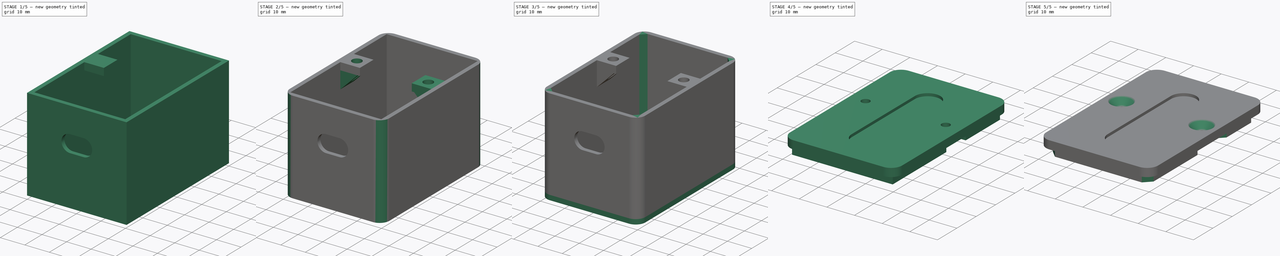
[diagram: build sequence overview — one tinted view per stage of 5, left to right]
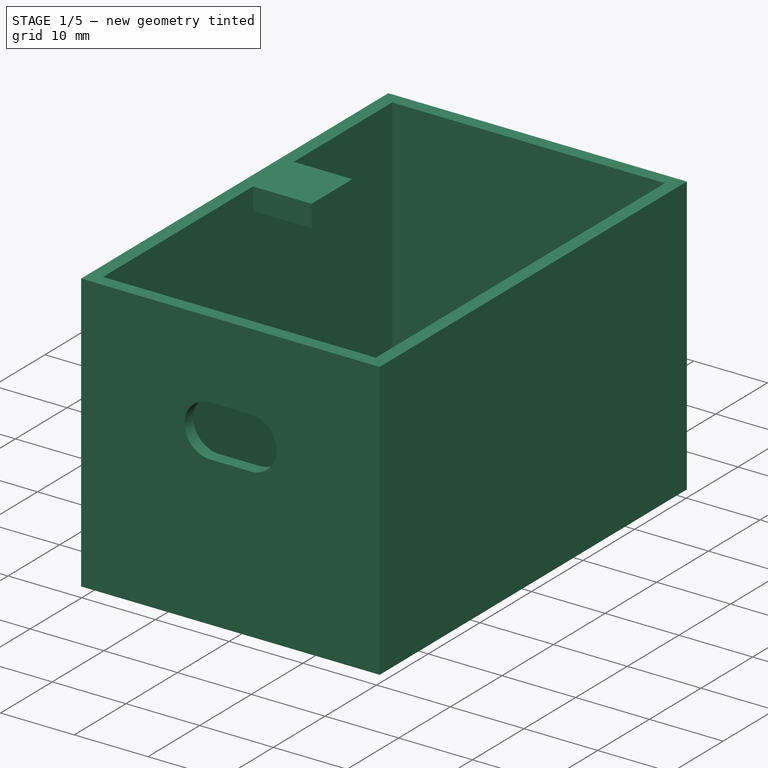
[diagram: stage 1 of 5 — iso view after this stage's code; geometry added in this stage tinted green]
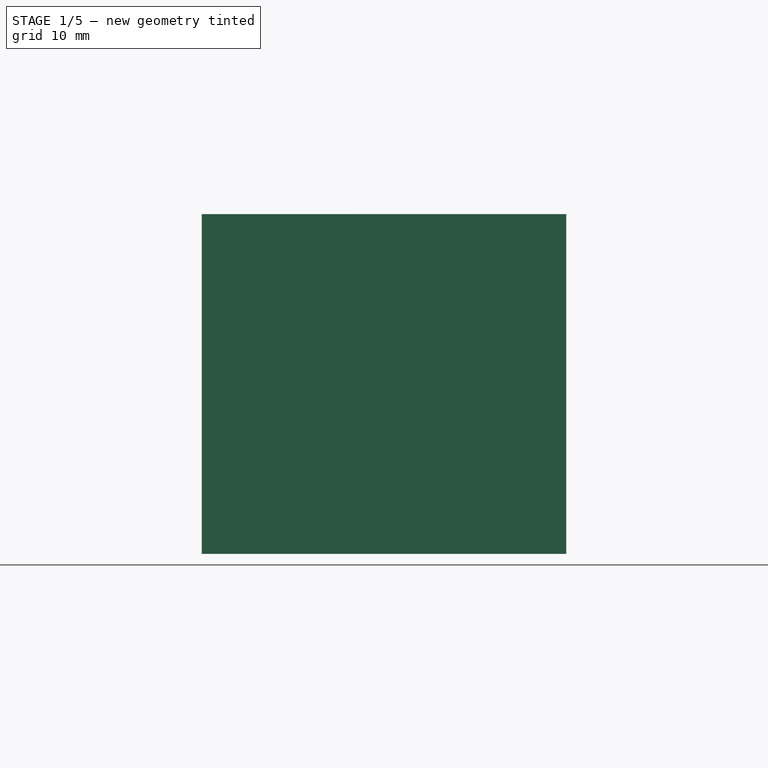
[diagram: stage 1 of 5 — front view after this stage's code; geometry added in this stage tinted green]
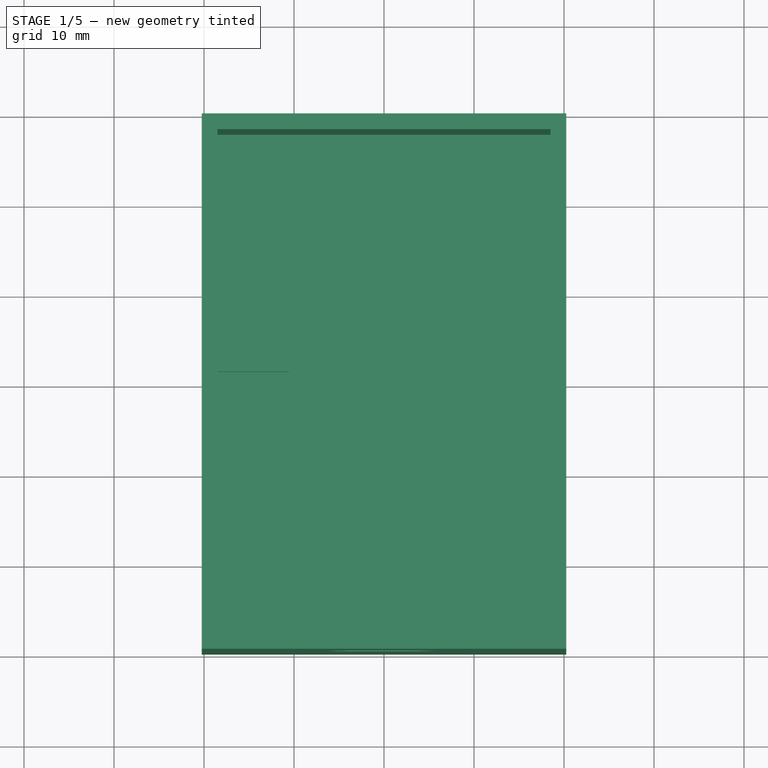
[diagram: stage 1 of 5 — top view after this stage's code; geometry added in this stage tinted green]
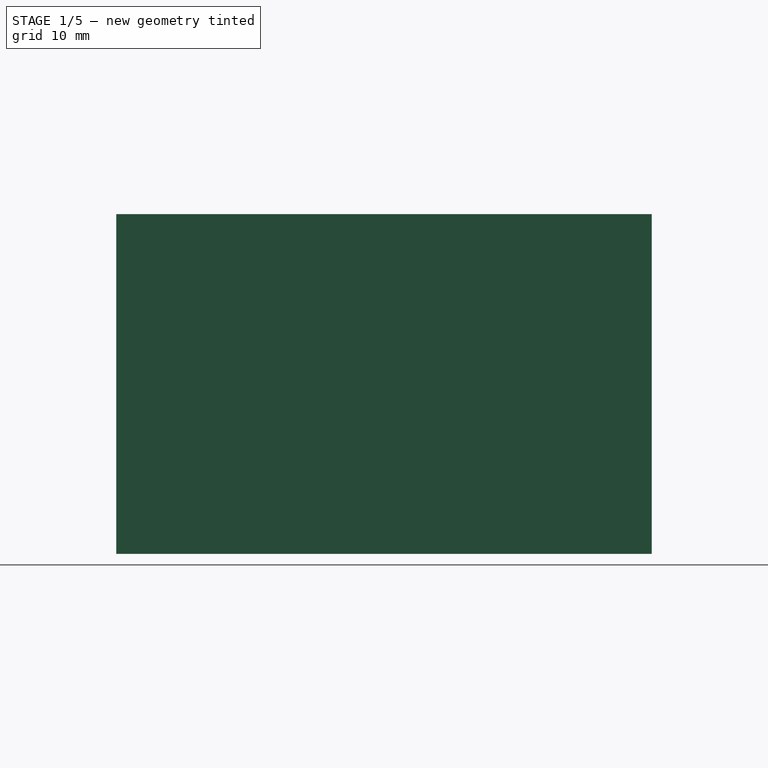
[diagram: stage 1 of 5 — right view after this stage's code; geometry added in this stage tinted green]
FCSTD DOCUMENT  (FreeCAD 0.20R)
Label: controller
License: All rights reserved
LicenseURL: http://en.wikipedia.org/wiki/All_rights_reserved
objects: Sketcher::SketchObject×9, PartDesign::Chamfer×6, PartDesign::Pad×5, PartDesign::Pocket×5, PartDesign::Mirrored×2, PartDesign::Fillet×2, PartDesign::Body×2, PartDesign::Thickness×1, PartDesign::ShapeBinder×1
note: 52 computed .brp shape members not serialized (recipe doc carries the construction recipe); baked Part::Feature solids carry a one-line shape summary decoded from their .brp

FEATURE [Sketcher::SketchObject] Sketch
  FullyConstrained = true
  MapMode = 5
  Support = -> [XY_Plane]
  sketch-geometry (4):
    g0: LineSegment StartX=-18.5 StartY=28 StartZ=0 EndX=18.5 EndY=28 EndZ=0
    g1: LineSegment StartX=18.5 StartY=28 StartZ=0 EndX=18.5 EndY=-28 EndZ=0
    g2: LineSegment StartX=18.5 StartY=-28 StartZ=0 EndX=-18.5 EndY=-28 EndZ=0
    g3: LineSegment StartX=-18.5 StartY=-28 StartZ=0 EndX=-18.5 EndY=28 EndZ=0
  constraints (11):
    c: Coincident(g0,g1)
    c: Coincident(g1,g2)
    c: Coincident(g2,g3)
    c: Coincident(g3,g0)
    c: Horizontal(g0)
    c: Horizontal(g2)
    c: Vertical(g1)
    c: Vertical(g3)
    c: Symmetric(g0,g1,g-1)
    c: DistanceX(g0,g0) = 37
    c: DistanceY(g1,g1) = 56
FEATURE [PartDesign::Pad] Pad
  Direction = (0,0,1)
  Length = 36
  Length2 = 10
  Profile = -> Sketch
  ReferenceAxis = -> Sketch [N_Axis]
  Type = 0
FEATURE [PartDesign::Thickness] Thickness
  Base = -> Pad [Face6]
  BaseFeature = -> Pad
  Intersection = false
  Join = 1
  Mode = 0
  SupportTransform = false
  Value = 1.75
FEATURE [Sketcher::SketchObject] Sketch001
  ExternalGeometry = -> [Thickness]
  FullyConstrained = true
  MapMode = 5
  Placement = pos=(0,-29.75,0) rot=(1,0,0;1.5708rad)
  Support = -> [Thickness]
  sketch-geometry (7):
    g0: ArcOfCircle CenterX=-2.75 CenterY=22 CenterZ=0 NormalX=0 NormalY=0 NormalZ=1 AngleXU=0 Radius=3.5 StartAngle=1.5708 EndAngle=4.71239
    g1: ArcOfCircle CenterX=2.75 CenterY=22 CenterZ=0 NormalX=0 NormalY=0 NormalZ=1 AngleXU=0 Radius=3.5 StartAngle=4.71239 EndAngle=7.85398
    g2: LineSegment StartX=-2.75 StartY=18.5 StartZ=0 EndX=2.75 EndY=18.5 EndZ=0
    g3: LineSegment StartX=2.75 StartY=25.5 StartZ=0 EndX=-2.75 EndY=25.5 EndZ=0
    g4: GeomPoint X=-6.25 Y=22 Z=0
    g5: GeomPoint X=6.25 Y=22 Z=0
    g6: LineSegment StartX=6.25 StartY=22 StartZ=0 EndX=-6.25 EndY=22 EndZ=0
  constraints (15):
    c: Tangent(g0,g2) = -1.5708
    c: Tangent(g2,g1) = -1.5708
    c: Tangent(g1,g3) = -1.5708
    c: Tangent(g3,g0) = -1.5708
    c: Equal(g0,g1)
    c: Diameter(g0) = 7
    c: PointOnObject(g4,g0)
    c: PointOnObject(g5,g1)
    c: Coincident(g6,g5)
    c: Coincident(g6,g4)
    c: PointOnObject(g0,g6)
    c: PointOnObject(g1,g6)
    c: DistanceX(g4,g5) = 12.5
    c: Symmetric(g0,g1,g-2)
    c: DistanceY(g-3,g0) = 22
FEATURE [PartDesign::Pocket] Pocket
  BaseFeature = -> Thickness
  Direction = (0,1,-2e-16)
  Length = 5
  Length2 = 5
  Profile = -> Sketch001
  ReferenceAxis = -> Sketch001 [N_Axis]
  Type = 0
FEATURE [Sketcher::SketchObject] Sketch002
  ExternalGeometry = -> [Pocket]
  FullyConstrained = true
  MapMode = 5
  Placement = pos=(0,0,36) rot=(0,0,1;0rad)
  Support = -> [Pocket]
  sketch-geometry (8):
    g0: Circle CenterX=-14.5 CenterY=5 CenterZ=0 NormalX=0 NormalY=0 NormalZ=1 AngleXU=0 Radius=1.95
    g1: LineSegment StartX=-18.5 StartY=8.95 StartZ=0 EndX=-10.55 EndY=8.95 EndZ=0
    g2: LineSegment StartX=-10.55 StartY=8.95 StartZ=0 EndX=-10.55 EndY=1.05 EndZ=0
    g3: LineSegment StartX=-10.55 StartY=1.05 StartZ=0 EndX=-18.5 EndY=1.05 EndZ=0
    g4: LineSegment StartX=-18.5 StartY=1.05 StartZ=0 EndX=-18.5 EndY=8.95 EndZ=0
    g5: LineSegment StartX=-14.5 StartY=6.95 StartZ=0 EndX=-14.5 EndY=8.95 EndZ=0
    g6: LineSegment StartX=-14.5 StartY=3.05 StartZ=0 EndX=-14.5 EndY=1.05 EndZ=0
    g7: LineSegment StartX=-12.55 StartY=5 StartZ=0 EndX=-10.55 EndY=5 EndZ=0
  constraints (27):
    c: Diameter(g0) = 3.9
    c: DistanceY(g0,g-3) = 23
    c: DistanceX(g-3,g0) = 4
    c: Coincident(g1,g2)
    c: Coincident(g2,g3)
    c: Coincident(g3,g4)
    c: Coincident(g4,g1)
    c: Horizontal(g1)
    c: Horizontal(g3)
    c: Vertical(g2)
    c: Vertical(g4)
    c: PointOnObject(g1,g-3)
    c: PointOnObject(g5,g0)
    c: PointOnObject(g5,g1)
    c: Vertical(g5)
    c: PointOnObject(g6,g0)
    c: PointOnObject(g6,g3)
    c: Vertical(g6)
    c: PointOnObject(g5,g6)
    c: Equal(g5,g6)
    c: PointOnObject(g0,g6)
    c: PointOnObject(g7,g0)
    c: PointOnObject(g7,g2)
    c: Horizontal(g7)
    c: Equal(g7,g6)
    c: PointOnObject(g0,g7)
    c: DistanceX(g7,g7) = 2
FEATURE [PartDesign::Pad] Pad001
  BaseFeature = -> Pocket
  Direction = (0,0,1)
  Length = 3
  Length2 = 10
  Profile = -> Sketch002
  ReferenceAxis = -> Sketch002 [N_Axis]
  Reversed = true
  Type = 0
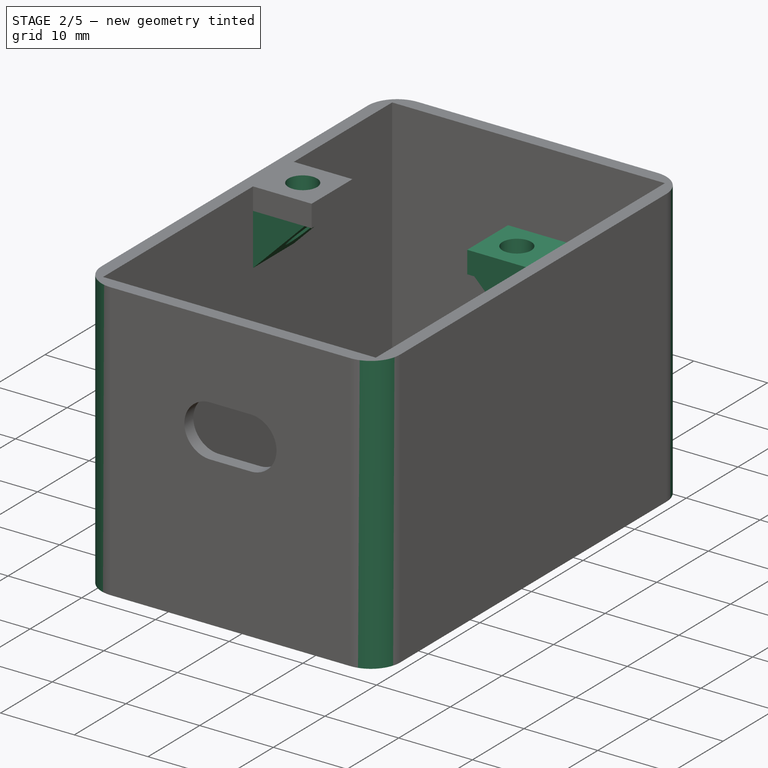
[diagram: stage 2 of 5 — iso view after this stage's code; geometry added in this stage tinted green]
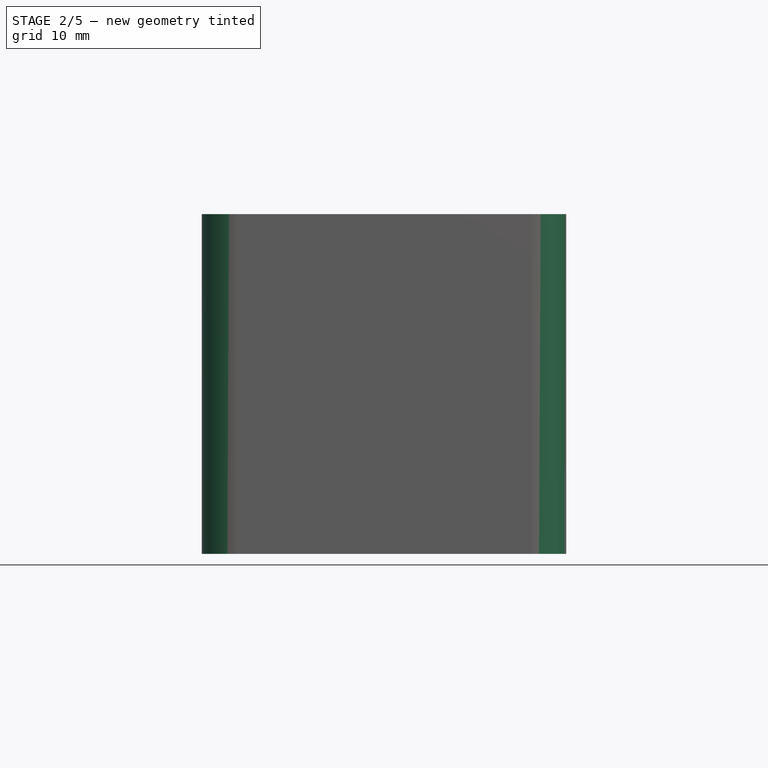
[diagram: stage 2 of 5 — front view after this stage's code; geometry added in this stage tinted green]
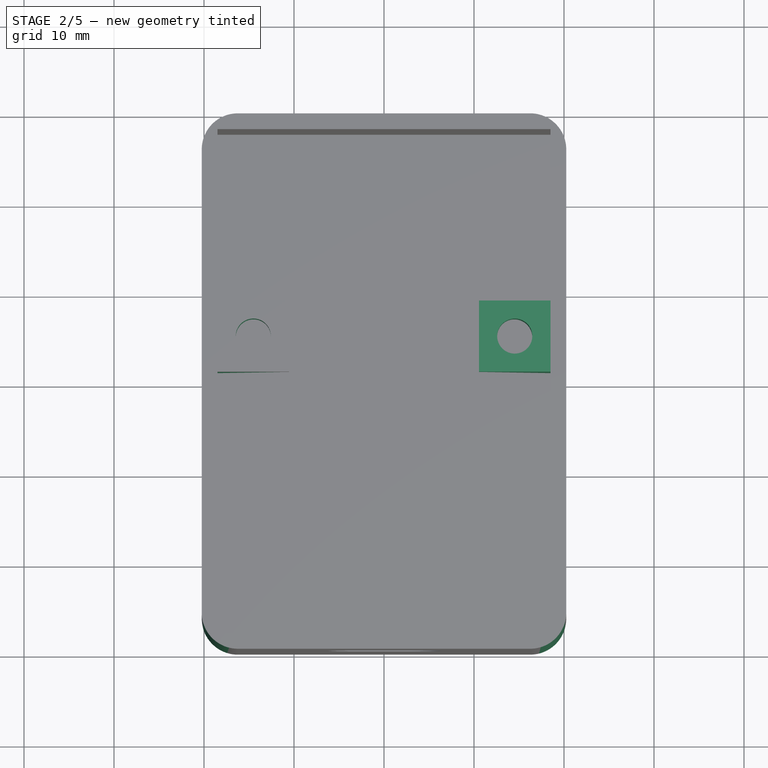
[diagram: stage 2 of 5 — top view after this stage's code; geometry added in this stage tinted green]
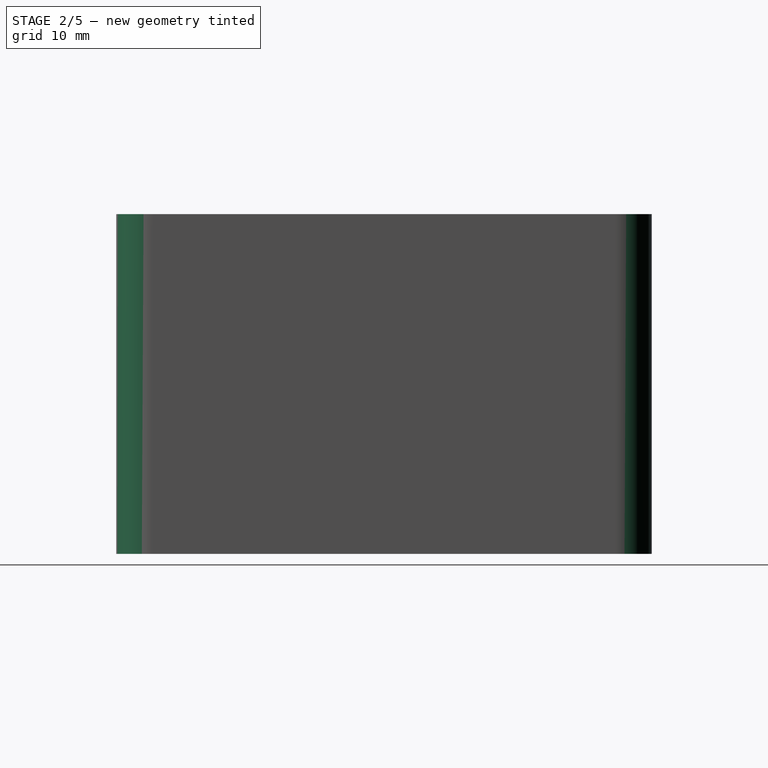
[diagram: stage 2 of 5 — right view after this stage's code; geometry added in this stage tinted green]
FEATURE [PartDesign::Chamfer] Chamfer
  Angle = 45
  Base = -> Pad001 [Edge8]
  BaseFeature = -> Pad001
  ChamferType = 0
  FlipDirection = false
  Size = 7
  Size2 = 1
  SupportTransform = false
  UseAllEdges = false
FEATURE [Sketcher::SketchObject] Sketch003
  ExternalGeometry = -> [Chamfer]
  FullyConstrained = true
  MapMode = 5
  Placement = pos=(0,0,36) rot=(0,0,1;0rad)
  Support = -> [Chamfer]
  sketch-geometry (1):
    g0: Circle CenterX=-14.525 CenterY=5 CenterZ=0 NormalX=0 NormalY=0 NormalZ=1 AngleXU=0 Radius=1.95
  constraints (2):
    c: Diameter(g0) = 3.9
    c: Symmetric(g-4,g-3,g0)
FEATURE [PartDesign::Pocket] Pocket001
  BaseFeature = -> Chamfer
  Direction = (0,0,-1)
  Length = 11
  Length2 = 5
  Profile = -> Sketch003
  ReferenceAxis = -> Sketch003 [N_Axis]
  Type = 0
FEATURE [PartDesign::Mirrored] Mirrored
  BaseFeature = -> Pocket001
  MirrorPlane = -> Sketch002 [V_Axis]
  Originals = -> [Pad001,Chamfer,Pocket001]
FEATURE [PartDesign::Fillet] Fillet
  Base = -> Mirrored [Edge59,Edge57,Edge54,Edge53]
  BaseFeature = -> Mirrored
  Radius = 4
  SupportTransform = false
  UseAllEdges = false
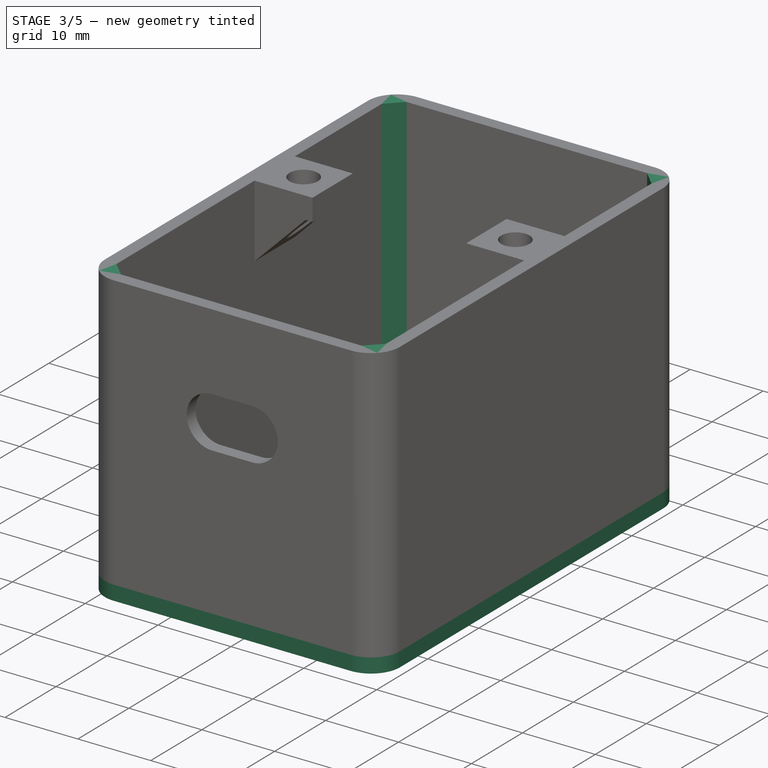
[diagram: stage 3 of 5 — iso view after this stage's code; geometry added in this stage tinted green]
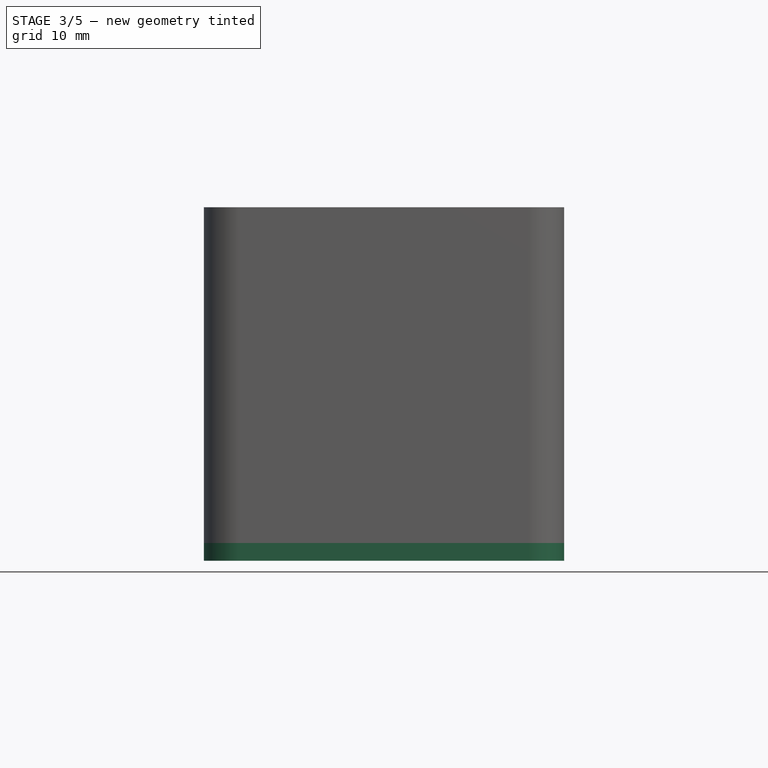
[diagram: stage 3 of 5 — front view after this stage's code; geometry added in this stage tinted green]
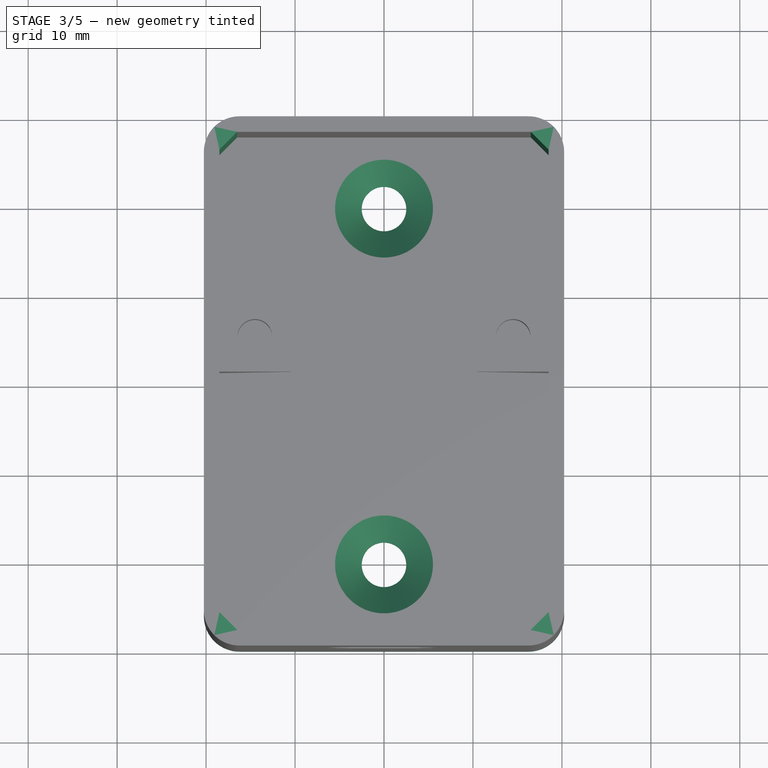
[diagram: stage 3 of 5 — top view after this stage's code; geometry added in this stage tinted green]
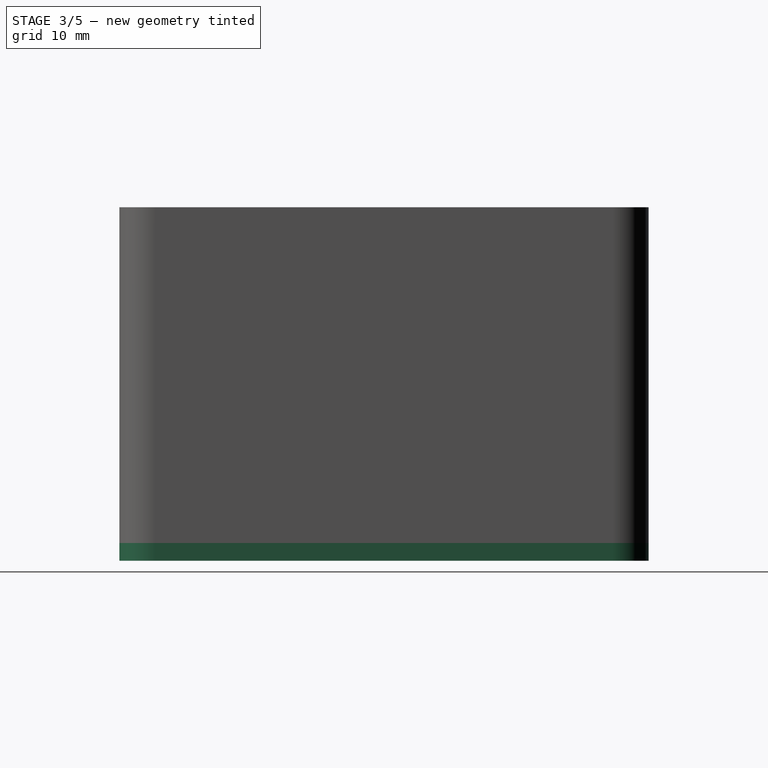
[diagram: stage 3 of 5 — right view after this stage's code; geometry added in this stage tinted green]
FEATURE [PartDesign::Chamfer] Chamfer001
  Angle = 45
  Base = -> Fillet [Edge52,Edge37,Edge38,Edge41]
  BaseFeature = -> Fillet
  ChamferType = 0
  FlipDirection = false
  Size = 2
  Size2 = 1
  SupportTransform = false
  UseAllEdges = false
FEATURE [Sketcher::SketchObject] Sketch004
  FullyConstrained = true
  MapMode = 5
  Support = -> [Chamfer001]
  sketch-geometry (1):
    g0: Circle CenterX=0 CenterY=20 CenterZ=0 NormalX=0 NormalY=0 NormalZ=1 AngleXU=0 Radius=2.5
  constraints (3):
    c: PointOnObject(g0,g-2)
    c: Diameter(g0) = 5
    c: DistanceY(g-1,g0) = 20
FEATURE [PartDesign::Pocket] Pocket002
  BaseFeature = -> Chamfer001
  Direction = (0,0,-1)
  Length = 5
  Length2 = 5
  Profile = -> Sketch004
  ReferenceAxis = -> Sketch004 [N_Axis]
  Type = 1
FEATURE [PartDesign::Mirrored] Mirrored001
  BaseFeature = -> Pocket002
  MirrorPlane = -> XZ_Plane
  Originals = -> [Pocket002]
FEATURE [PartDesign::Pad] Pad002
  BaseFeature = -> Mirrored001
  Direction = (0,0,-1)
  Length = 2
  Length2 = 10
  Profile = -> Mirrored001 [Face37]
  Type = 0
FEATURE [PartDesign::Chamfer] Chamfer002
  Angle = 45
  Base = -> Pad002 [Edge79,Edge80]
  BaseFeature = -> Pad002
  ChamferType = 0
  FlipDirection = false
  Size = 3
  Size2 = 1
  SupportTransform = false
  UseAllEdges = false
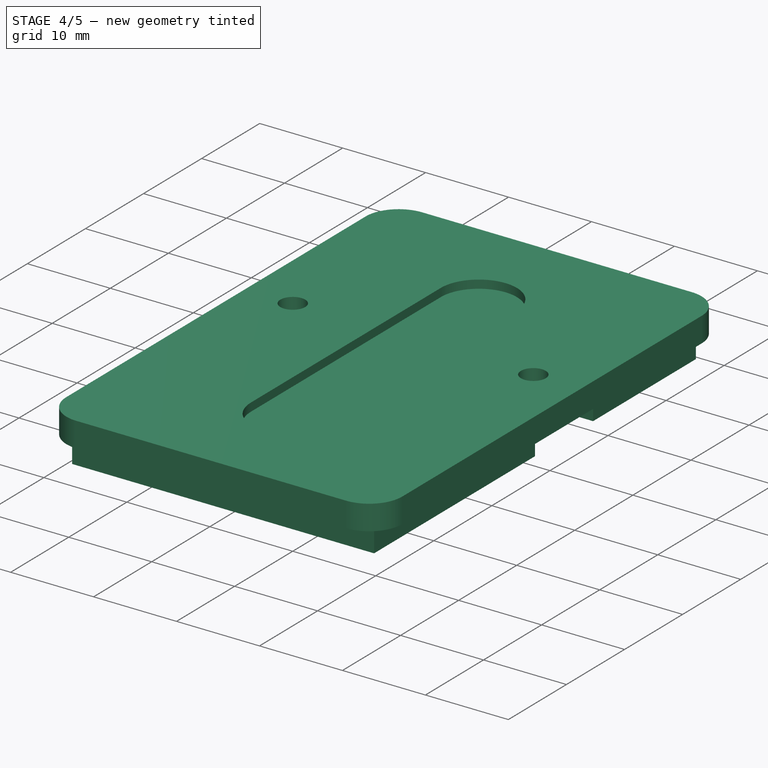
[diagram: stage 4 of 5 — iso view after this stage's code; geometry added in this stage tinted green]
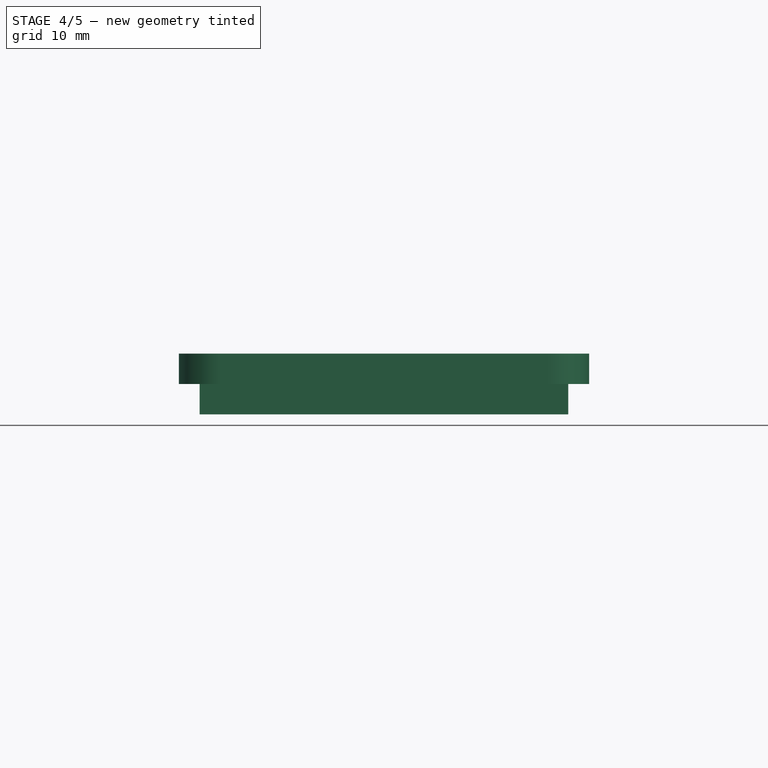
[diagram: stage 4 of 5 — front view after this stage's code; geometry added in this stage tinted green]
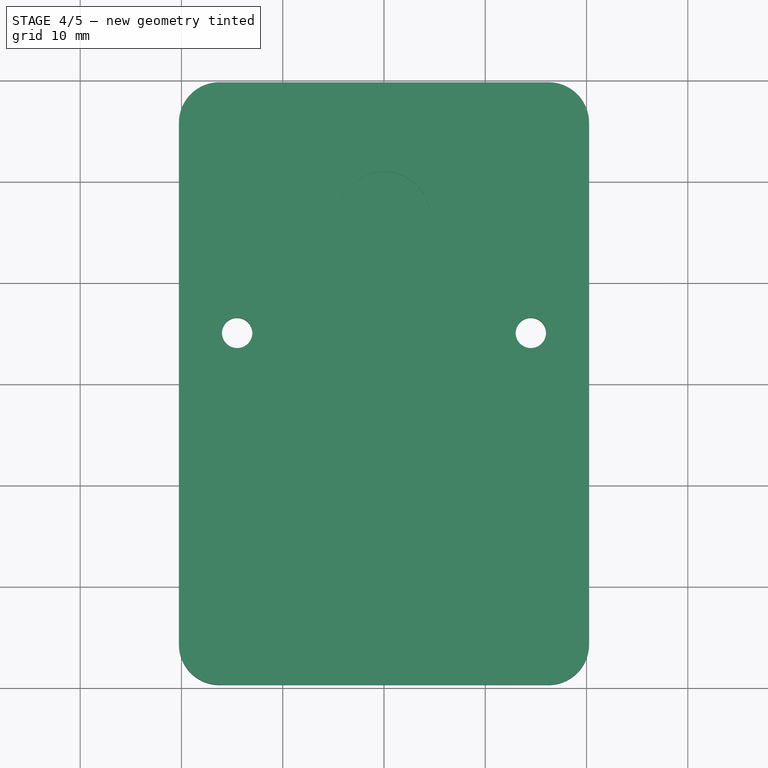
[diagram: stage 4 of 5 — top view after this stage's code; geometry added in this stage tinted green]
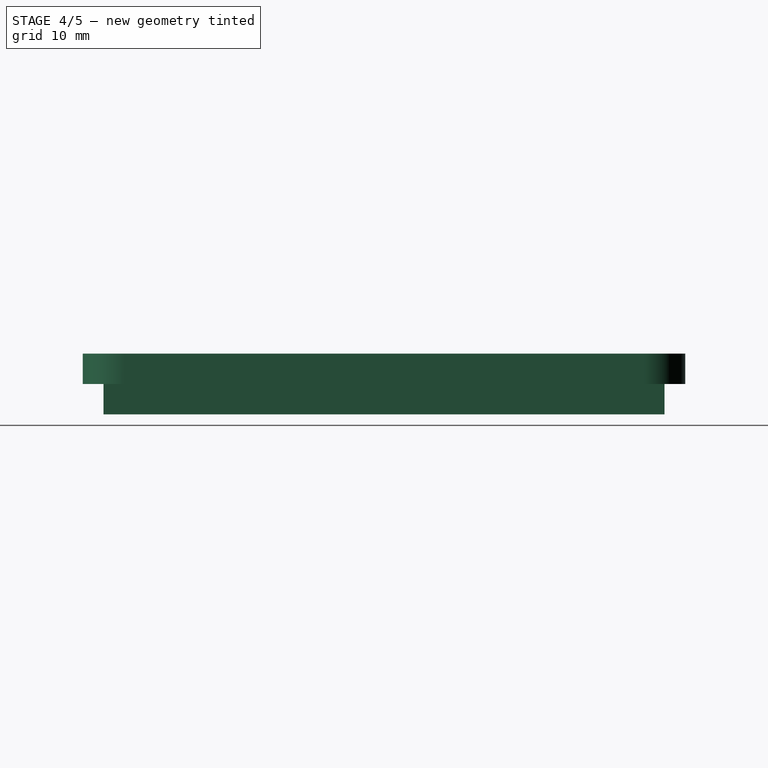
[diagram: stage 4 of 5 — right view after this stage's code; geometry added in this stage tinted green]
FEATURE [PartDesign::Body] Body
  Group = -> [Sketch,Pad,Thickness,Sketch001,Pocket,Sketch002,Pad001,Chamfer,Sketch003,Pocket001,Mirrored,Fillet,Chamfer001,Sketch004,Pocket002,Mirrored001,Pad002,Chamfer002]
  Origin = -> Origin
  Tip = -> Chamfer002
FEATURE [PartDesign::ShapeBinder] CopyChamfer002
  Support = -> [Chamfer002]
  TraceSupport = false
FEATURE [Sketcher::SketchObject] Sketch005
  FullyConstrained = true
  MapMode = 5
  Placement = pos=(0,0,36) rot=(0,0,1;0rad)
  Support = -> [CopyChamfer002]
  sketch-geometry (6):
    g0: Circle CenterX=-14.5 CenterY=5 CenterZ=0 NormalX=0 NormalY=0 NormalZ=1 AngleXU=0 Radius=1.5
    g1: Circle CenterX=14.5 CenterY=5 CenterZ=0 NormalX=0 NormalY=0 NormalZ=1 AngleXU=0 Radius=1.5
    g2: LineSegment StartX=-20.25 StartY=29.75 StartZ=0 EndX=20.25 EndY=29.75 EndZ=0
    g3: LineSegment StartX=20.25 StartY=29.75 StartZ=0 EndX=20.25 EndY=-29.75 EndZ=0
    g4: LineSegment StartX=20.25 StartY=-29.75 StartZ=0 EndX=-20.25 EndY=-29.75 EndZ=0
    g5: LineSegment StartX=-20.25 StartY=-29.75 StartZ=0 EndX=-20.25 EndY=29.75 EndZ=0
  constraints (16):
    c: Equal(g0,g1)
    c: Diameter(g1) = 3
    c: Symmetric(g0,g1,g-2)
    c: DistanceX(g0,g1) = 29
    c: DistanceY(g-1,g0) = 5
    c: Coincident(g2,g3)
    c: Coincident(g3,g4)
    c: Coincident(g4,g5)
    c: Coincident(g5,g2)
    c: Horizontal(g2)
    c: Horizontal(g4)
    c: Vertical(g3)
    c: Vertical(g5)
    c: Symmetric(g3,g2,g-1)
    c: DistanceX(g2,g2) = 40.5
    c: DistanceY(g3,g3) = 59.5
FEATURE [PartDesign::Pad] Pad003
  Direction = (0,0,1)
  Length = 3
  Length2 = 10
  Profile = -> Sketch005
  ReferenceAxis = -> Sketch005 [N_Axis]
  Type = 0
FEATURE [PartDesign::Fillet] Fillet001
  Base = -> Pad003 [Edge5,Edge2,Edge8,Edge1]
  BaseFeature = -> Pad003
  Radius = 4
  SupportTransform = false
  UseAllEdges = false
FEATURE [Sketcher::SketchObject] Sketch006
  ExternalGeometry = -> [Fillet001]
  FullyConstrained = true
  MapMode = 5
  Placement = pos=(0,0,36) rot=(1,0,0;3.14159rad)
  Support = -> [Fillet001]
  sketch-geometry (13):
    g0: LineSegment StartX=-18.2 StartY=0 StartZ=0 EndX=-18.2 EndY=27.7 EndZ=0
    g1: LineSegment StartX=-18.2 StartY=27.7 StartZ=0 EndX=18.2 EndY=27.7 EndZ=0
    g2: LineSegment StartX=18.2 StartY=27.7 StartZ=0 EndX=18.2 EndY=0 EndZ=0
    g3: LineSegment StartX=18.2 StartY=0 StartZ=0 EndX=8.2 EndY=0 EndZ=0
    g4: LineSegment StartX=8.2 StartY=0 StartZ=0 EndX=8.2 EndY=-10 EndZ=0
    g5: LineSegment StartX=8.2 StartY=-10 StartZ=0 EndX=18.2 EndY=-10 EndZ=0
    g6: LineSegment StartX=18.2 StartY=-10 StartZ=0 EndX=18.2 EndY=-27.7 EndZ=0
    g7: LineSegment StartX=18.2 StartY=-27.7 StartZ=0 EndX=-18.2 EndY=-27.7 EndZ=0
    g8: LineSegment StartX=-18.2 StartY=-27.7 StartZ=0 EndX=-18.2 EndY=-10 EndZ=0
    g9: LineSegment StartX=-18.2 StartY=-10 StartZ=0 EndX=-8.2 EndY=-10 EndZ=0
    g10: LineSegment StartX=-8.2 StartY=-10 StartZ=0 EndX=-8.2 EndY=0 EndZ=0
    g11: LineSegment StartX=-8.2 StartY=0 StartZ=0 EndX=-18.2 EndY=0 EndZ=0
    g12: LineSegment StartX=-14.5 StartY=0 StartZ=0 EndX=-14.5 EndY=-10 EndZ=0
  constraints (38):
    c: PointOnObject(g0,g-1)
    c: Vertical(g0)
    c: Coincident(g1,g0)
    c: Horizontal(g1)
    c: Coincident(g2,g1)
    c: PointOnObject(g2,g-1)
    c: Vertical(g2)
    c: Coincident(g3,g2)
    c: PointOnObject(g3,g-1)
    c: Coincident(g4,g3)
    c: Vertical(g4)
    c: Coincident(g5,g4)
    c: Horizontal(g5)
    c: Coincident(g6,g5)
    c: Vertical(g6)
    c: Coincident(g7,g6)
    c: Horizontal(g7)
    c: Coincident(g8,g7)
    c: Vertical(g8)
    c: Coincident(g9,g8)
    c: Coincident(g10,g9)
    c: PointOnObject(g10,g-1)
    c: Vertical(g10)
    c: Coincident(g11,g10)
    c: Coincident(g11,g0)
    c: Horizontal(g9)
    c: PointOnObject(g8,g0)
    c: PointOnObject(g5,g2)
    c: Equal(g3,g11)
    c: DistanceX(g1,g1) = 36.4
    c: Symmetric(g0,g6,g-1)
    c: DistanceY(g6,g1) = 55.4
    c: Equal(g10,g4)
    c: PointOnObject(g12,g11)
    c: PointOnObject(g12,g9)
    c: Vertical(g12)
    c: Symmetric(g12,g12,g-4)
    c: DistanceX(g11,g11) = 10
FEATURE [PartDesign::Pad] Pad004
  BaseFeature = -> Fillet001
  Direction = (0,0,-1)
  Length = 3
  Length2 = 10
  Profile = -> Sketch006
  ReferenceAxis = -> Sketch006 [N_Axis]
  Type = 0
FEATURE [Sketcher::SketchObject] Sketch007
  FullyConstrained = false
  MapMode = 5
  Placement = pos=(0,0,39) rot=(0,0,1;0rad)
  Support = -> [Pad004]
  sketch-geometry (4):
    g0: ArcOfCircle CenterX=0 CenterY=16.3263 CenterZ=0 NormalX=0 NormalY=0 NormalZ=1 AngleXU=0 Radius=4.59284 StartAngle=3e-16 EndAngle=3.14159
    g1: ArcOfCircle CenterX=0 CenterY=-16.3263 CenterZ=0 NormalX=0 NormalY=0 NormalZ=1 AngleXU=0 Radius=4.59284 StartAngle=3.14159 EndAngle=6.28319
    g2: LineSegment StartX=-4.59284 StartY=16.3263 StartZ=0 EndX=-4.59284 EndY=-16.3263 EndZ=0
    g3: LineSegment StartX=4.59284 StartY=-16.3263 StartZ=0 EndX=4.59284 EndY=16.3263 EndZ=0
  constraints (7):
    c: Tangent(g0,g2) = -1.5708
    c: Tangent(g2,g1) = -1.5708
    c: Tangent(g1,g3) = -1.5708
    c: Tangent(g3,g0) = -1.5708
    c: Equal(g0,g1)
    c: PointOnObject(g0,g-2)
    c: Symmetric(g0,g1,g-1)
FEATURE [PartDesign::Pocket] Pocket003
  BaseFeature = -> Pad004
  Direction = (0,0,-1)
  Length = 1
  Length2 = 5
  Profile = -> Sketch007
  ReferenceAxis = -> Sketch007 [N_Axis]
  Type = 0
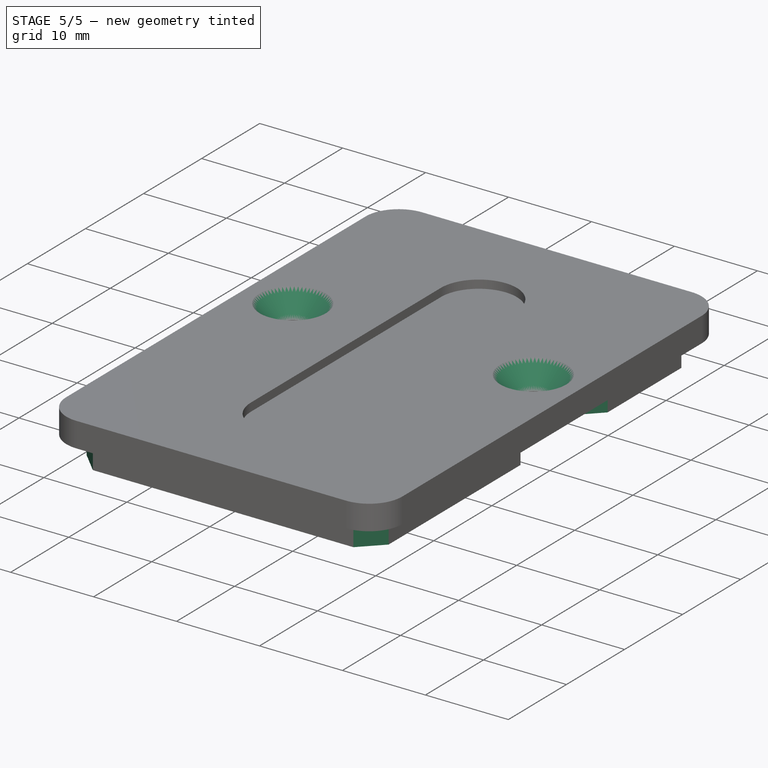
[diagram: stage 5 of 5 — iso view after this stage's code; geometry added in this stage tinted green]
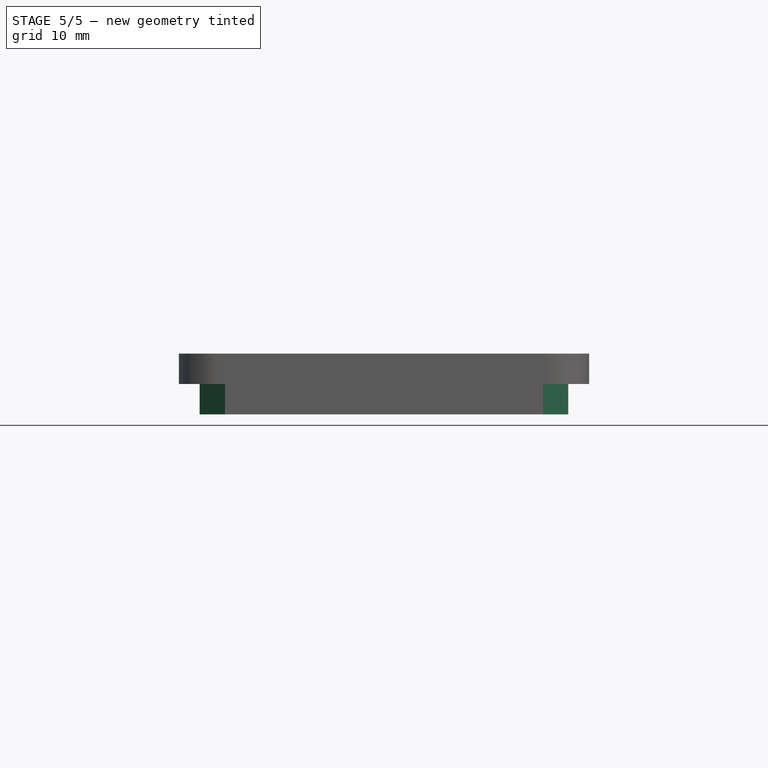
[diagram: stage 5 of 5 — front view after this stage's code; geometry added in this stage tinted green]
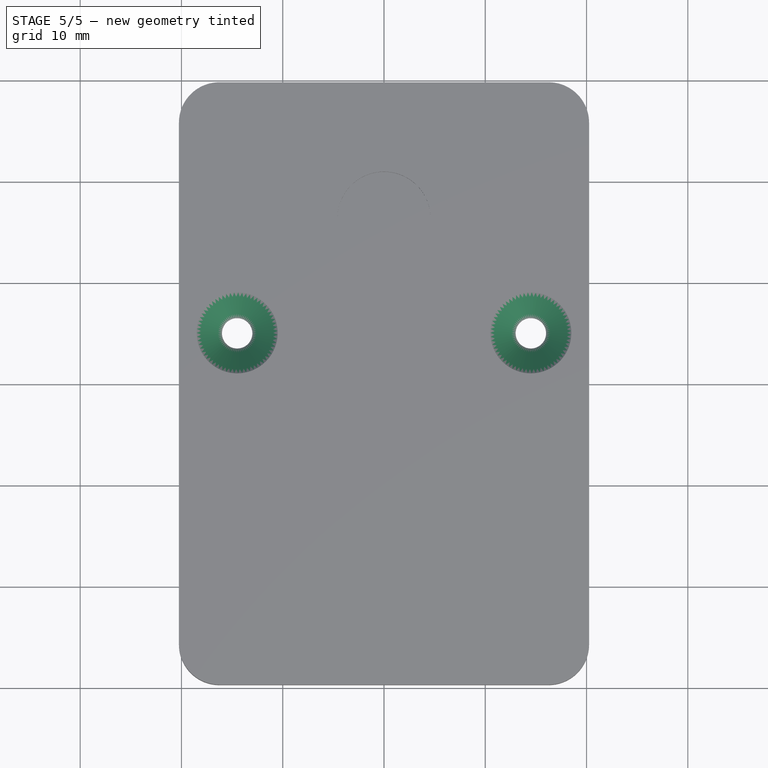
[diagram: stage 5 of 5 — top view after this stage's code; geometry added in this stage tinted green]
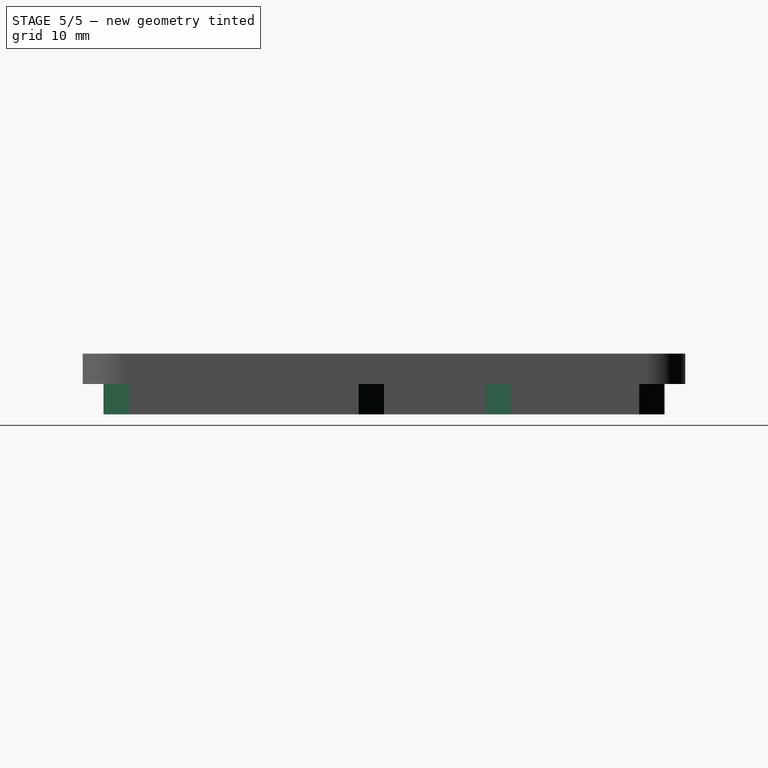
[diagram: stage 5 of 5 — right view after this stage's code; geometry added in this stage tinted green]
FEATURE [PartDesign::Chamfer] Chamfer003
  Angle = 45
  Base = -> Pocket003 [Edge40,Edge35]
  BaseFeature = -> Pocket003
  ChamferType = 0
  FlipDirection = false
  Size = 2.5
  Size2 = 1
  SupportTransform = false
  UseAllEdges = false
FEATURE [PartDesign::Chamfer] Chamfer004
  Angle = 45
  Base = -> Chamfer003 [Edge62,Edge60,Edge74,Edge72]
  BaseFeature = -> Chamfer003
  ChamferType = 0
  FlipDirection = false
  Size = 2.5
  Size2 = 1
  SupportTransform = false
  UseAllEdges = false
FEATURE [Sketcher::SketchObject] Sketch008
  ExternalGeometry = -> [Chamfer004]
  FullyConstrained = true
  MapMode = 5
  Placement = pos=(0,0,33) rot=(1,0,0;3.14159rad)
  Support = -> [Chamfer004]
  sketch-geometry (16):
    g0: LineSegment StartX=-16.2 StartY=2 StartZ=0 EndX=-16.2 EndY=25.7 EndZ=0
    g1: LineSegment StartX=-16.2 StartY=25.7 StartZ=0 EndX=16.2 EndY=25.7 EndZ=0
    g2: LineSegment StartX=16.2 StartY=25.7 StartZ=0 EndX=16.2 EndY=2 EndZ=0
    g3: LineSegment StartX=16.2 StartY=2 StartZ=0 EndX=-16.2 EndY=2 EndZ=0
    g4: LineSegment StartX=16.2 StartY=2 StartZ=0 EndX=18.2 EndY=2 EndZ=0
    g5: LineSegment StartX=-16.2 StartY=2 StartZ=0 EndX=-18.2 EndY=2 EndZ=0
    g6: LineSegment StartX=-16.2 StartY=2 StartZ=0 EndX=-16.2 EndY=0 EndZ=0
    g7: LineSegment StartX=-16.2 StartY=25.7 StartZ=0 EndX=-16.2 EndY=27.7 EndZ=0
    g8: LineSegment StartX=-16.2 StartY=-12 StartZ=0 EndX=16.2 EndY=-12 EndZ=0
    g9: LineSegment StartX=16.2 StartY=-12 StartZ=0 EndX=16.2 EndY=-25.7 EndZ=0
    g10: LineSegment StartX=16.2 StartY=-25.7 StartZ=0 EndX=-16.2 EndY=-25.7 EndZ=0
    g11: LineSegment StartX=-16.2 StartY=-25.7 StartZ=0 EndX=-16.2 EndY=-12 EndZ=0
    g12: LineSegment StartX=16.2 StartY=-12 StartZ=0 EndX=16.2 EndY=-10 EndZ=0
    g13: LineSegment StartX=16.2 StartY=-12 StartZ=0 EndX=18.2 EndY=-12 EndZ=0
    g14: LineSegment StartX=16.2 StartY=-25.7 StartZ=0 EndX=16.2 EndY=-27.7 EndZ=0
    g15: LineSegment StartX=-16.2 StartY=-12 StartZ=0 EndX=-18.2 EndY=-12 EndZ=0
  constraints (48):
    c: Vertical(g0)
    c: Coincident(g1,g0)
    c: Horizontal(g1)
    c: Coincident(g2,g1)
    c: Vertical(g2)
    c: Coincident(g3,g2)
    c: Horizontal(g3)
    c: Coincident(g3,g0)
    c: Coincident(g4,g2)
    c: PointOnObject(g4,g-18)
    c: Horizontal(g4)
    c: Coincident(g5,g0)
    c: PointOnObject(g5,g-6)
    c: Coincident(g6,g0)
    c: PointOnObject(g6,g-7)
    c: Vertical(g6)
    c: Horizontal(g5)
    c: Equal(g4,g5)
    c: Equal(g6,g4)
    c: Coincident(g7,g0)
    c: PointOnObject(g7,g-4)
    c: Vertical(g7)
    c: Equal(g7,g5)
    c: DistanceY(g7,g7) = 2
    c: Coincident(g8,g9)
    c: Coincident(g9,g10)
    c: Coincident(g10,g11)
    c: Coincident(g11,g8)
    c: Horizontal(g8)
    c: Horizontal(g10)
    c: Vertical(g9)
    c: Vertical(g11)
    c: Coincident(g12,g8)
    c: PointOnObject(g12,g-15)
    c: Vertical(g12)
    c: Coincident(g13,g8)
    c: PointOnObject(g13,g-14)
    c: Horizontal(g13)
    c: Coincident(g14,g9)
    c: PointOnObject(g14,g-12)
    c: Vertical(g14)
    c: Coincident(g15,g8)
    c: PointOnObject(g15,g-10)
    c: Horizontal(g15)
    c: Equal(g12,g13)
    c: Equal(g13,g15)
    c: Equal(g15,g14)
    c: Equal(g14,g4)
FEATURE [PartDesign::Pocket] Pocket004
  BaseFeature = -> Chamfer004
  Direction = (0,0,1)
  Length = 4
  Length2 = 5
  Profile = -> Sketch008
  ReferenceAxis = -> Sketch008 [N_Axis]
  Type = 0
FEATURE [PartDesign::Chamfer] Chamfer005
  Angle = 45
  Base = -> Pocket004 [Edge108,Edge106,Edge103,Edge104,Edge98,Edge96,Edge95,Edge100,Edge54,Edge42,Edge40,Edge28]
  BaseFeature = -> Pocket004
  ChamferType = 0
  FlipDirection = false
  Size = 2.5
  Size2 = 1
  SupportTransform = false
  UseAllEdges = false
FEATURE [PartDesign::Body] Body001
  Group = -> [CopyChamfer002,Sketch005,Pad003,Fillet001,Sketch006,Pad004,Sketch007,Pocket003,Chamfer003,Chamfer004,Sketch008,Pocket004,Chamfer005]
  Origin = -> Origin001
  Tip = -> Chamfer005
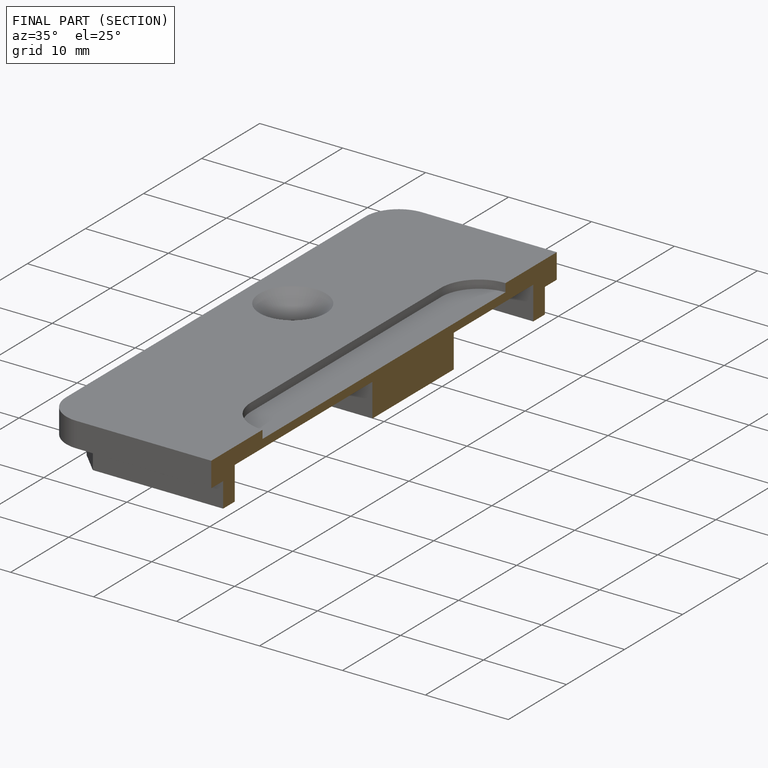
[diagram: finished part — half-section view (interior)]
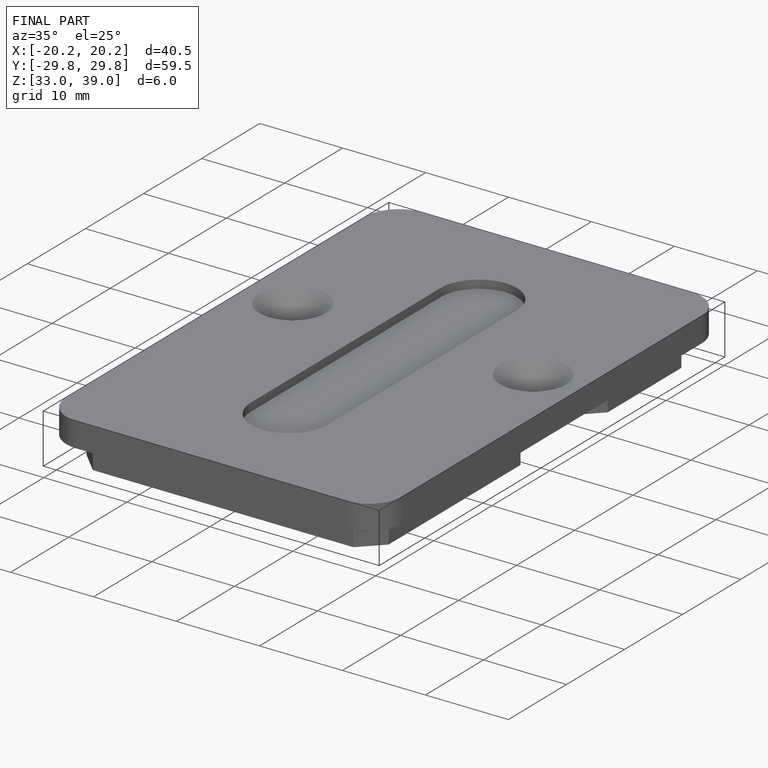
[diagram: finished part — iso view with bounding-box wireframe]
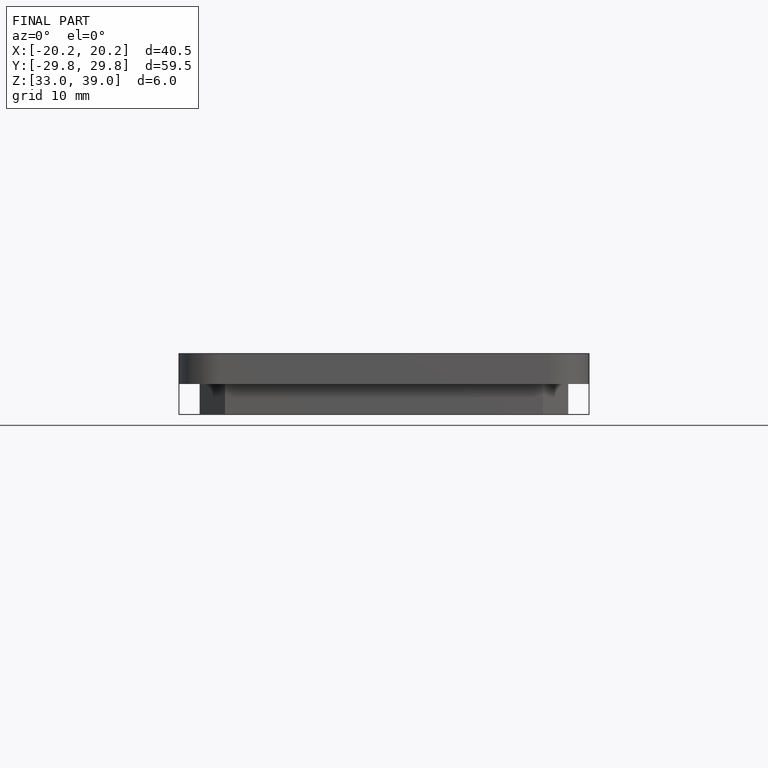
[diagram: finished part — front view with bounding-box wireframe]
